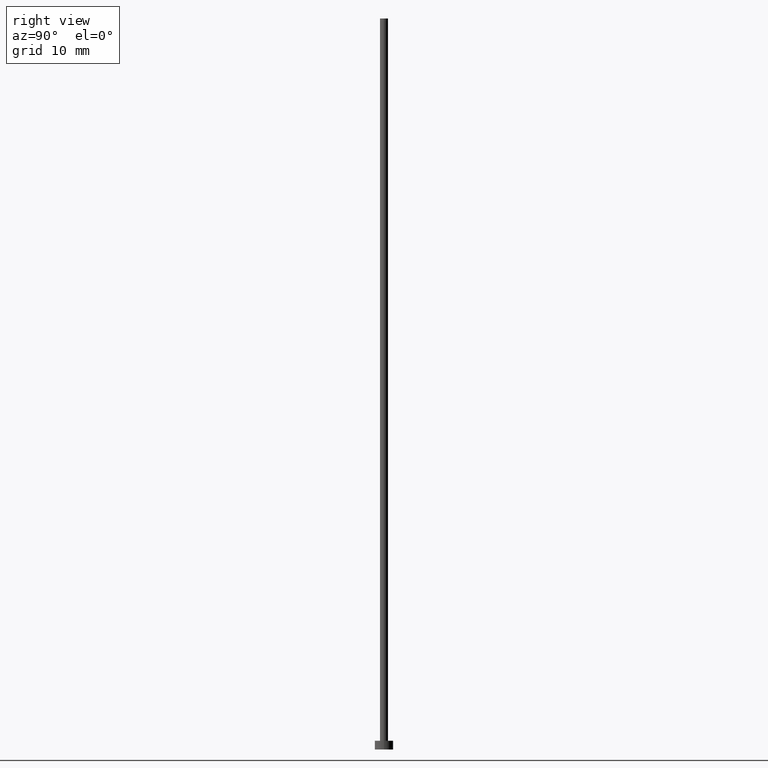
[diagram: clean part render]
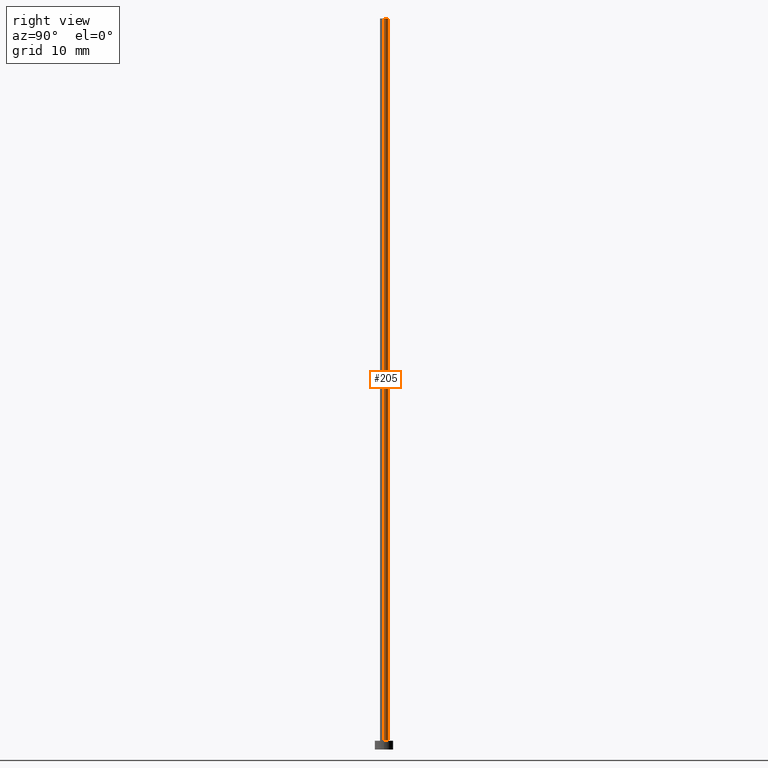
[diagram: same view with one face highlighted and labeled with its STEP entity id]
A machine part, right view. The second image highlights one B-rep face of the part: STEP entity #205.
In plain terms, the highlighted cylindrical surface (edge-blend (fillet) strip) has radius 0.55 mm, axis along (-0, -0, -1).
Its self-contained STEP definition (entity closure, byte-faithful):
#2 = EDGE_CURVE ( 'NONE', #182, #102, #30, .T. ) ;
#4 = CARTESIAN_POINT ( 'NONE',  ( 0.5500000000000000444, 6.735557395310442516E-17, 100.0000000000000000 ) ) ;
#21 = LINE ( 'NONE', #253, #233 ) ;
#28 = CYLINDRICAL_SURFACE ( 'NONE', #165, 0.5500000000000000444 ) ;
#30 = LINE ( 'NONE', #53, #146 ) ;
#44 = CIRCLE ( 'NONE', #68, 0.5500000000000000444 ) ;
#47 = DIRECTION ( 'NONE',  ( -0.000000000000000000, -0.000000000000000000, -1.000000000000000000 ) ) ;
#53 = CARTESIAN_POINT ( 'NONE',  ( 0.5500000000000000444, 6.735557395310442516E-17, 100.0000000000000000 ) ) ;
#61 = ORIENTED_EDGE ( 'NONE', *, *, #2, .T. ) ;
#65 = CARTESIAN_POINT ( 'NONE',  ( 0.000000000000000000, 0.000000000000000000, 100.0000000000000000 ) ) ;
#68 = AXIS2_PLACEMENT_3D ( 'NONE', #143, #202, #121 ) ;
#78 = CARTESIAN_POINT ( 'NONE',  ( -0.5500000000000000444, 0.000000000000000000, 1.199999999999999956 ) ) ;
#85 = DIRECTION ( 'NONE',  ( 1.000000000000000000, 0.000000000000000000, 0.000000000000000000 ) ) ;
#88 = CARTESIAN_POINT ( 'NONE',  ( 0.000000000000000000, 0.000000000000000000, 100.0000000000000000 ) ) ;
#102 = VERTEX_POINT ( 'NONE', #208 ) ;
#103 = DIRECTION ( 'NONE',  ( -1.000000000000000000, 0.000000000000000000, 0.000000000000000000 ) ) ;
#113 = EDGE_CURVE ( 'NONE', #247, #186, #21, .T. ) ;
#121 = DIRECTION ( 'NONE',  ( 1.000000000000000000, 0.000000000000000000, 0.000000000000000000 ) ) ;
#143 = CARTESIAN_POINT ( 'NONE',  ( 0.000000000000000000, 0.000000000000000000, 1.199999999999999956 ) ) ;
#144 = ORIENTED_EDGE ( 'NONE', *, *, #207, .T. ) ;
#145 = AXIS2_PLACEMENT_3D ( 'NONE', #88, #220, #85 ) ;
#146 = VECTOR ( 'NONE', #226, 1000.000000000000000 ) ;
#154 = CIRCLE ( 'NONE', #145, 0.5500000000000000444 ) ;
#165 = AXIS2_PLACEMENT_3D ( 'NONE', #65, #47, #103 ) ;
#166 = CARTESIAN_POINT ( 'NONE',  ( -0.5500000000000000444, 0.000000000000000000, 100.0000000000000000 ) ) ;
#182 = VERTEX_POINT ( 'NONE', #4 ) ;
#186 = VERTEX_POINT ( 'NONE', #78 ) ;
#202 = DIRECTION ( 'NONE',  ( 0.000000000000000000, 0.000000000000000000, 1.000000000000000000 ) ) ;
#203 = ORIENTED_EDGE ( 'NONE', *, *, #246, .F. ) ;
#205 = ADVANCED_FACE ( 'NONE', ( #240 ), #28, .T. ) ;
#207 = EDGE_CURVE ( 'NONE', #102, #186, #44, .T. ) ;
#208 = CARTESIAN_POINT ( 'NONE',  ( 0.5500000000000000444, 6.735557395310442516E-17, 1.199999999999999956 ) ) ;
#220 = DIRECTION ( 'NONE',  ( 0.000000000000000000, 0.000000000000000000, 1.000000000000000000 ) ) ;
#226 = DIRECTION ( 'NONE',  ( -0.000000000000000000, -0.000000000000000000, -1.000000000000000000 ) ) ;
#230 = DIRECTION ( 'NONE',  ( -0.000000000000000000, -0.000000000000000000, -1.000000000000000000 ) ) ;
#233 = VECTOR ( 'NONE', #230, 1000.000000000000000 ) ;
#240 = FACE_OUTER_BOUND ( 'NONE', #241, .T. ) ;
#241 = EDGE_LOOP ( 'NONE', ( #203, #61, #144, #245 ) ) ;
#245 = ORIENTED_EDGE ( 'NONE', *, *, #113, .F. ) ;
#246 = EDGE_CURVE ( 'NONE', #182, #247, #154, .T. ) ;
#247 = VERTEX_POINT ( 'NONE', #166 ) ;
#253 = CARTESIAN_POINT ( 'NONE',  ( -0.5500000000000000444, 0.000000000000000000, 100.0000000000000000 ) ) ;